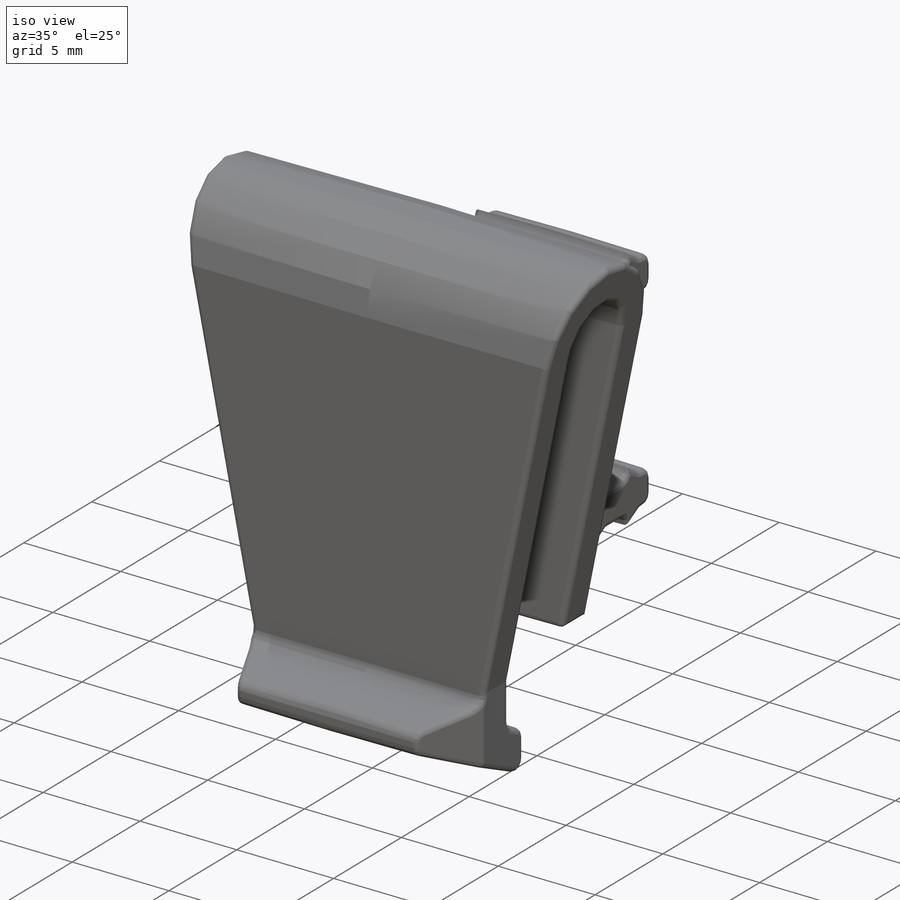
[diagram: iso view]
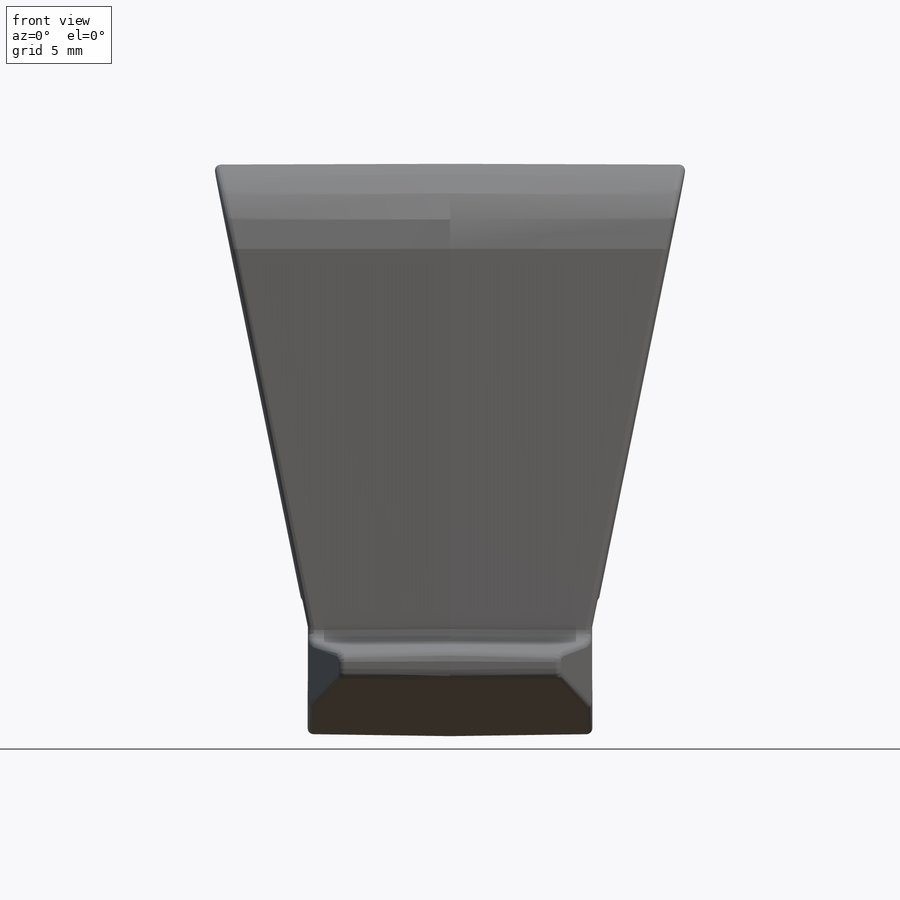
[diagram: front view]
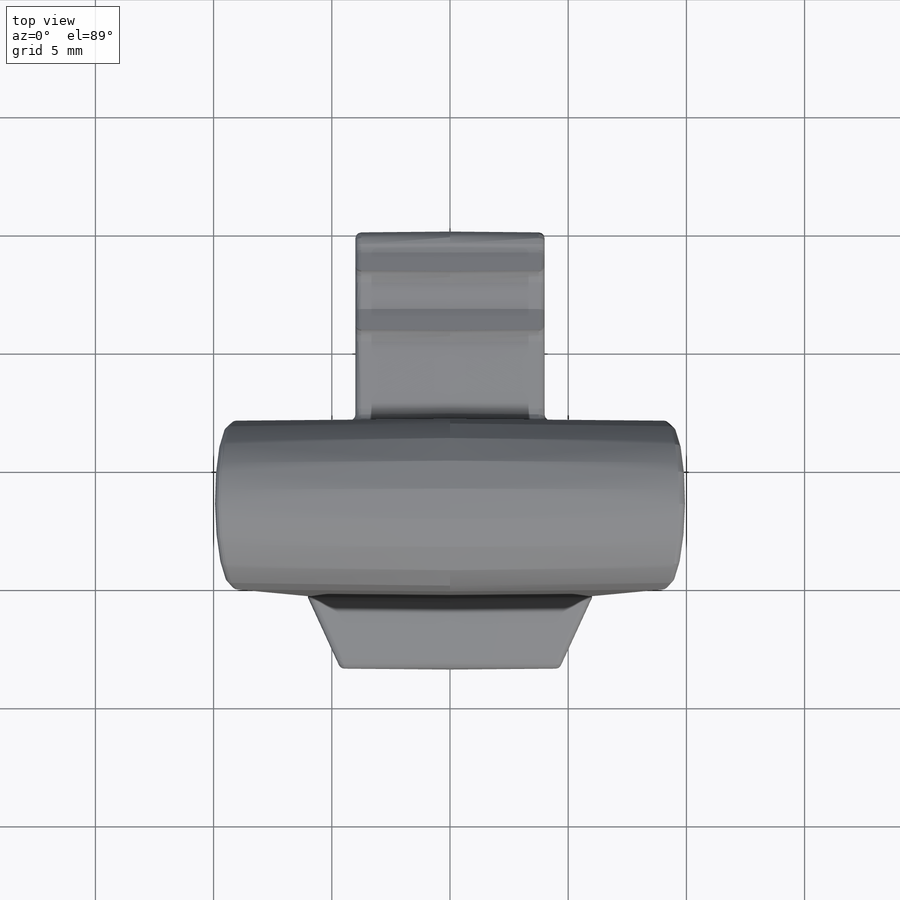
[diagram: top view]
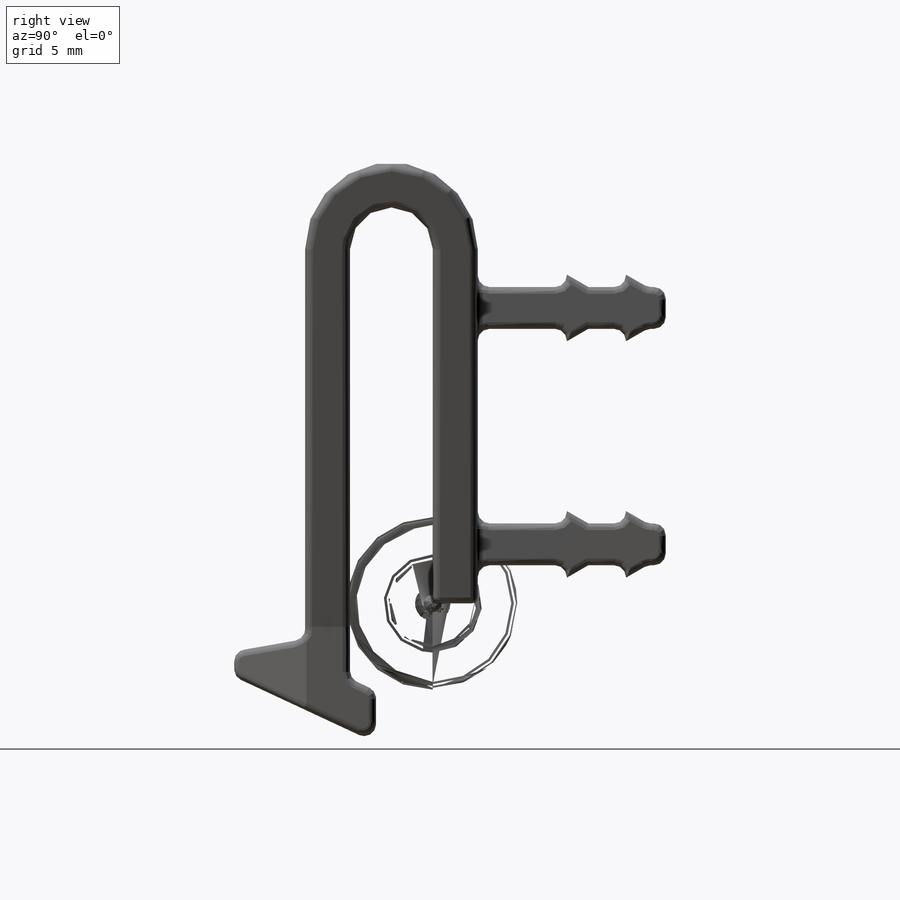
[diagram: right view]
SOLIDWORKS PART (.sldprt)
format: sldprt  version: not decoded by parser v0  size: 882,176 bytes
history: native  units: mm
features: sketch x6, fillet x4, extrude x3, cut_extrude x2, plane x2, material x1, pattern_linear x1, mirror x1 (+11 scaffold rows collapsed)
feature tree (31):
  scaffold x11  (default folders/planes/origin — collapsed)
  material  "ABS"
  sketch  "Sketch1"  dims[c1.D1=3.5mm c1.D2=19.5mm c1.D3=15.0mm c2.D1=10.0mm c2.D5=1.9mm c2.D6=1.0mm c2.D7=5.0mm]
  sketch  "Sketch2"  dims[c1.D1=12.0mm c1.D2=3.0mm c2.D1=12.0mm]
  extrude  "Extrude1"  Depth=3mm
  sketch  "Sketch5"  dims[D1=2.0mm D2=0.0mm]
  cut_extrude  "Extrude4"  [1 undecoded]
  sketch  "Sketch3"  dims[D1=~3.984486mm D2=0.55mm]
  cut_extrude  "Extrude2"  [1 undecoded]
  sketch  "Sketch4"  dims[c1.D1=1.7mm c1.D2=~1.680918mm c2.D2=30.0deg c2.D3=~1.70457mm c3.D3=30.0deg c3.D4=5.0mm c3.D5=0.5mm c3.D6=0.5mm c3.D7=0.75mm c3.D8=2.5mm c4.D6=2.5mm c4.D4=8.0mm]
  extrude  "Extrude3"  Depth=4mm
  fillet  "Fillet5"  Radius=0.5mm
  fillet  "Fillet6"  Radius=0.25mm
  pattern_linear  "LPattern3"  Count1=2 Count2=1 Spacing1=10mm Spacing2=10mm
  fillet  "Fillet1"  Radius=0.5mm
  fillet  "Fillet2"  Radius=0.25mm
  mirror  "Mirror2"
  sketch  "Sketch6"  dims[D1=1.0mm]
  extrude  "Extrude5"  Depth=3mm
  plane  "Plane1"
  plane  "Plane2"
decode coverage: 14 of 17 modeling features carry decoded parameters
note: ~ marks probable driven/reference dimensions
note: 2 parameter values undecoded
note: suppression state not decoded; provenance and decode notes live in map.json
